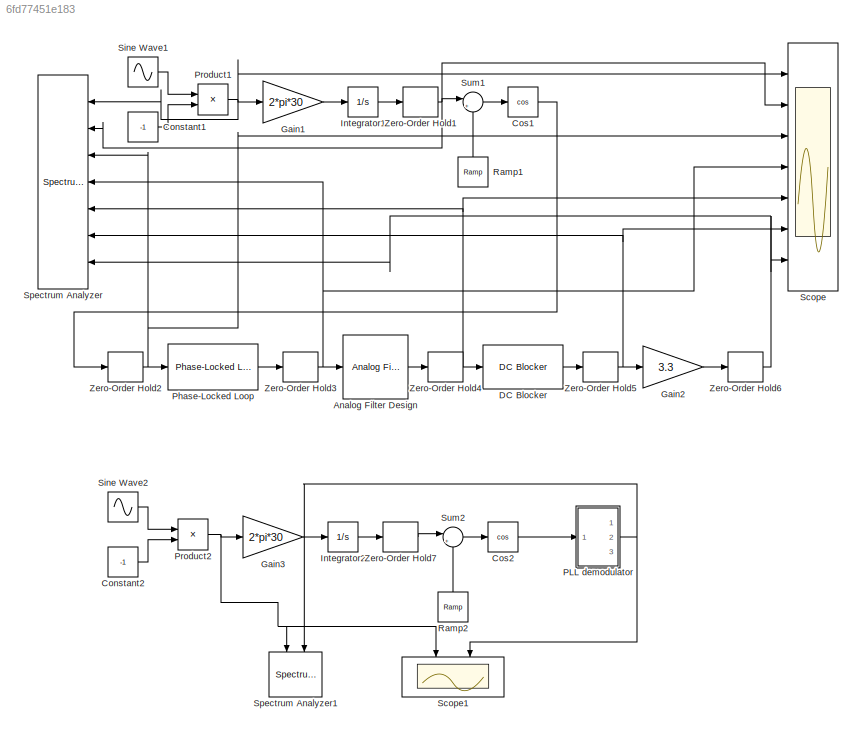
MODEL slx_6fd77451e183
KIND model
CONFIG AbsTol = auto
CONFIG EnableMultiTasking = off
CONFIG FixedStep = auto
CONFIG MaxStep = auto
CONFIG MinStep = auto
CONFIG RelTol = 1e-3
CONFIG SampleTimeConstraint = Unconstrained
CONFIG SolverName = VariableStepAuto
CONFIG StartTime = 0.0
CONFIG StopTime = 10.0
BLOCK [Reference] Analog Filter Design  REF=dsparch4/Analog
Filter Design
  Commented = on
  Ports = [1, 1]
  SourceBlock = dsparch4/Analog\nFilter Design
  SourceProductBaseCode = DS
  SourceType = Analog Filter Design
BLOCK [Constant] Constant1
  Commented = on
  SampleTime = 0.00001
  Value = -1
BLOCK [Constant] Constant2
  SampleTime = 0.00001
  Value = -1
BLOCK [Trigonometry] Cos1
  Commented = on
  Operator = cos
  OutputSignalType = real
  Ports = [1, 1]
BLOCK [Trigonometry] Cos2
  Operator = cos
  OutputSignalType = real
  Ports = [1, 1]
BLOCK [Reference] DC Blocker  REF=dspsigops/DC Blocker
  Commented = on
  Ports = [1, 1]
  SourceBlock = dspsigops/DC Blocker
  SourceProductBaseCode = DS
  SourceType = DCBlocker
BLOCK [Gain] Gain1
  Commented = on
  Gain = 2*pi*30
BLOCK [Gain] Gain2
  Commented = on
  Gain = 3.3
BLOCK [Gain] Gain3
  Gain = 2*pi*30
BLOCK [Integrator] Integrator1
  Commented = on
  Ports = [1, 1]
BLOCK [Integrator] Integrator2
  Ports = [1, 1]
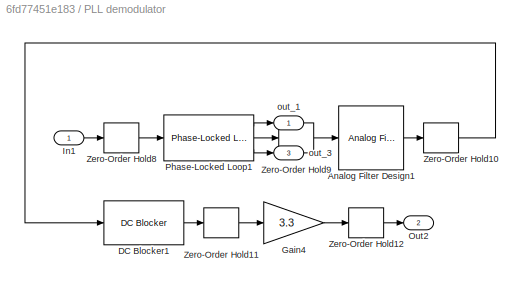
BLOCK [SubSystem] PLL demodulator
  Ports = [1, 3]
  RequestExecContextInheritance = off
BLOCK [Reference] PLL demodulator/Analog Filter Design1  REF=dsparch4/Analog
Filter Design
  Ports = [1, 1]
  SourceBlock = dsparch4/Analog\nFilter Design
  SourceProductBaseCode = DS
  SourceType = Analog Filter Design
BLOCK [Reference] PLL demodulator/DC Blocker1  REF=dspsigops/DC Blocker
  Ports = [1, 1]
  SourceBlock = dspsigops/DC Blocker
  SourceProductBaseCode = DS
  SourceType = DCBlocker
BLOCK [Gain] PLL demodulator/Gain4
  Gain = 3.3
BLOCK [Inport] PLL demodulator/In1
BLOCK [Outport] PLL demodulator/Out2
  Port = 2
BLOCK [Reference] PLL demodulator/Phase-Locked Loop1  REF=commsynccomp2/Phase-Locked
Loop
  Ports = [1, 3]
  SourceBlock = commsynccomp2/Phase-Locked\nLoop
  SourceProductBaseCode = CM
  SourceType = Phase-Locked Loop
BLOCK [ZeroOrderHold] PLL demodulator/Zero-Order Hold10
  SampleTime = 0.00001
BLOCK [ZeroOrderHold] PLL demodulator/Zero-Order Hold11
  SampleTime = 0.00001
BLOCK [ZeroOrderHold] PLL demodulator/Zero-Order Hold12
  SampleTime = 0.00001
BLOCK [ZeroOrderHold] PLL demodulator/Zero-Order Hold8
  SampleTime = 0.00001
BLOCK [ZeroOrderHold] PLL demodulator/Zero-Order Hold9
  SampleTime = 0.00001
BLOCK [Outport] PLL demodulator/out_1
BLOCK [Outport] PLL demodulator/out_3
  Port = 3
BLOCK [Reference] Phase-Locked Loop  REF=commsynccomp2/Phase-Locked
Loop
  Commented = on
  Ports = [1, 3]
  SourceBlock = commsynccomp2/Phase-Locked\nLoop
  SourceProductBaseCode = CM
  SourceType = Phase-Locked Loop
BLOCK [Product] Product1
  Commented = on
  Ports = [2, 1]
BLOCK [Product] Product2
  Ports = [2, 1]
BLOCK [Reference] Ramp1  REF=simulink/Sources/Ramp
  Commented = on
  NameLocation = right
  Ports = [0, 1]
  SourceBlock = simulink/Sources/Ramp
  SourceProductBaseCode = SL
  SourceType = Ramp
BLOCK [Reference] Ramp2  REF=simulink/Sources/Ramp
  NameLocation = right
  Ports = [0, 1]
  SourceBlock = simulink/Sources/Ramp
  SourceProductBaseCode = SL
  SourceType = Ramp
BLOCK [Scope] Scope
  Commented = on
  Floating = off
  NumInputPorts = 7
  Ports = [7]
  ScopeSpecificationString = Simulink.scopes.TimeScopeBlockCfg('CurrentConfiguration', extmgr.ConfigurationSet(extmgr.Configuration('Core','General UI',true),extmgr.Configuration('Core','Source UI',true),extmgr.Configuration('Sources','WiredSimulink',true),extmgr.Configuration('Visuals','Time Domain',true,'SerializedDisplays',{struct('MinYLimReal','-1.475','MaxYLimReal','1.275','YLabelReal','','MinYLimMag','0.00000','MaxYLimM...<+1672ch>
BLOCK [Scope] Scope1
  Floating = off
  NameLocation = left
  NumInputPorts = 2
  Ports = [2]
  ScopeSpecificationString = Simulink.scopes.TimeScopeBlockCfg('CurrentConfiguration', extmgr.ConfigurationSet(extmgr.Configuration('Core','General UI',true,'FigureColor',[1 1 1]),extmgr.Configuration('Core','Source UI',true),extmgr.Configuration('Sources','WiredSimulink',true,'DataLoggingVariableName','ScopeData1'),extmgr.Configuration('Visuals','Time Domain',true,'SerializedDisplays',{struct('MinYLimReal','-1.30847','MaxYLi...<+1667ch>
BLOCK [Sin] Sine Wave1
  Commented = on
  Frequency = 2*pi*50
  Ports = [0, 1]
  SampleTime = 0.00001
BLOCK [Sin] Sine Wave2
  Frequency = 2*pi*50
  Ports = [0, 1]
  SampleTime = 0.00001
BLOCK [SpectrumAnalyzer] Spectrum Analyzer
  Commented = on
  NameLocation = top
  NumInputPorts = 7
  Ports = [7]
  ScopeSpecificationString = spbscopes.SpectrumAnalyzerBlockCfg('CurrentConfiguration', extmgr.ConfigurationSet(extmgr.Configuration('Core','General UI',true),extmgr.Configuration('Core','Source UI',true),extmgr.Configuration('Sources','WiredSimulink',true),extmgr.Configuration('Visuals','Spectrum',true,'AxesProperties',struct('Color',{[0 0 0],[0 0 0]},'XColor',{[0.686274509803922 0.686274509803922 0.686274509803922],[0.68627...<+2583ch>
BLOCK [SpectrumAnalyzer] Spectrum Analyzer1
  NameLocation = left
  NumInputPorts = 2
  Ports = [2]
  ScopeSpecificationString = spbscopes.SpectrumAnalyzerBlockCfg('CurrentConfiguration', extmgr.ConfigurationSet(extmgr.Configuration('Core','General UI',true,'FigureColor',[1 1 1]),extmgr.Configuration('Core','Source UI',true),extmgr.Configuration('Sources','WiredSimulink',true),extmgr.Configuration('Visuals','Spectrum',true,'AxesProperties',struct('Color',{[1 1 1],[1 1 1]},'XColor',{[0 0 0],[0 0 0]},'YColor',{[0 0 0],[0 0 0]...<+1928ch>
BLOCK [Sum] Sum1
  Commented = on
  Inputs = |++
  Ports = [2, 1]
BLOCK [Sum] Sum2
  Inputs = |++
  Ports = [2, 1]
BLOCK [ZeroOrderHold] Zero-Order Hold1
  Commented = on
  SampleTime = 0.00001
BLOCK [ZeroOrderHold] Zero-Order Hold2
  Commented = on
  SampleTime = 0.00001
BLOCK [ZeroOrderHold] Zero-Order Hold3
  Commented = on
  SampleTime = 0.00001
BLOCK [ZeroOrderHold] Zero-Order Hold4
  Commented = on
  SampleTime = 0.00001
BLOCK [ZeroOrderHold] Zero-Order Hold5
  Commented = on
  SampleTime = 0.00001
BLOCK [ZeroOrderHold] Zero-Order Hold6
  Commented = on
  SampleTime = 0.00001
BLOCK [ZeroOrderHold] Zero-Order Hold7
  SampleTime = 0.00001
LINE Analog Filter Design:1 -> Zero-Order Hold4:1
LINE Constant1:1 -> Product1:2
LINE Constant2:1 -> Product2:2
LINE Cos1:1 -> Zero-Order Hold2:1
LINE Cos2:1 -> PLL demodulator:1
LINE DC Blocker:1 -> Zero-Order Hold5:1
LINE Gain1:1 -> Integrator1:1
LINE Gain2:1 -> Zero-Order Hold6:1
LINE Gain3:1 -> Integrator2:1
LINE Integrator1:1 -> Zero-Order Hold1:1
LINE Integrator2:1 -> Zero-Order Hold7:1
LINE PLL demodulator/Analog Filter Design1:1 -> PLL demodulator/Zero-Order Hold10:1
LINE PLL demodulator/DC Blocker1:1 -> PLL demodulator/Zero-Order Hold11:1
LINE PLL demodulator/Gain4:1 -> PLL demodulator/Zero-Order Hold12:1
LINE PLL demodulator/In1:1 -> PLL demodulator/Zero-Order Hold8:1
LINE PLL demodulator/Phase-Locked Loop1:1 -> PLL demodulator/out_1:1
LINE PLL demodulator/Phase-Locked Loop1:2 -> PLL demodulator/Zero-Order Hold9:1
LINE PLL demodulator/Phase-Locked Loop1:3 -> PLL demodulator/out_3:1
LINE PLL demodulator/Zero-Order Hold10:1 -> PLL demodulator/DC Blocker1:1
LINE PLL demodulator/Zero-Order Hold11:1 -> PLL demodulator/Gain4:1
LINE PLL demodulator/Zero-Order Hold12:1 -> PLL demodulator/Out2:1
LINE PLL demodulator/Zero-Order Hold8:1 -> PLL demodulator/Phase-Locked Loop1:1
LINE PLL demodulator/Zero-Order Hold9:1 -> PLL demodulator/Analog Filter Design1:1
NET PLL demodulator:2 -> Scope1:2, Spectrum Analyzer1:2
LINE Phase-Locked Loop:2 -> Zero-Order Hold3:1
NET Product1:1 -> Gain1:1, Scope:1, Spectrum Analyzer:1
NET Product2:1 -> Gain3:1, Scope1:1, Spectrum Analyzer1:1
LINE Ramp1:1 -> Sum1:2
LINE Ramp2:1 -> Sum2:2
LINE Sine Wave1:1 -> Product1:1
LINE Sine Wave2:1 -> Product2:1
LINE Sum1:1 -> Cos1:1
LINE Sum2:1 -> Cos2:1
NET Zero-Order Hold1:1 -> Scope:2, Spectrum Analyzer:2, Sum1:1
NET Zero-Order Hold2:1 -> Phase-Locked Loop:1, Scope:3, Spectrum Analyzer:3
NET Zero-Order Hold3:1 -> Analog Filter Design:1, Scope:4, Spectrum Analyzer:4
NET Zero-Order Hold4:1 -> DC Blocker:1, Scope:5, Spectrum Analyzer:5
NET Zero-Order Hold5:1 -> Gain2:1, Scope:6, Spectrum Analyzer:6
NET Zero-Order Hold6:1 -> Scope:7, Spectrum Analyzer:7
LINE Zero-Order Hold7:1 -> Sum2:1
note: NET lines group one-source signal fan-out (src -> all destinations, sorted); 1:1 wires keep LINE
